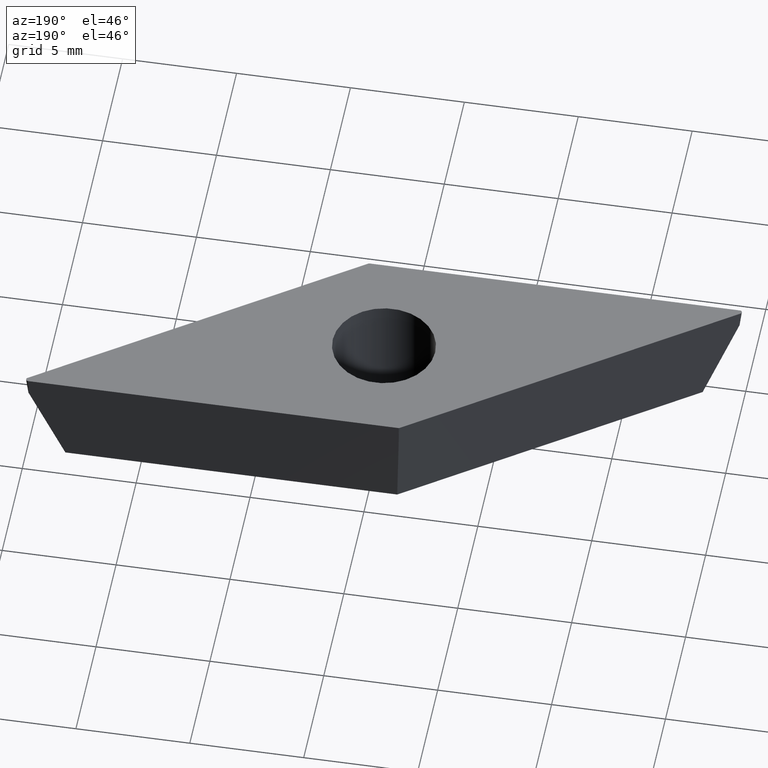
[diagram: clean part render]
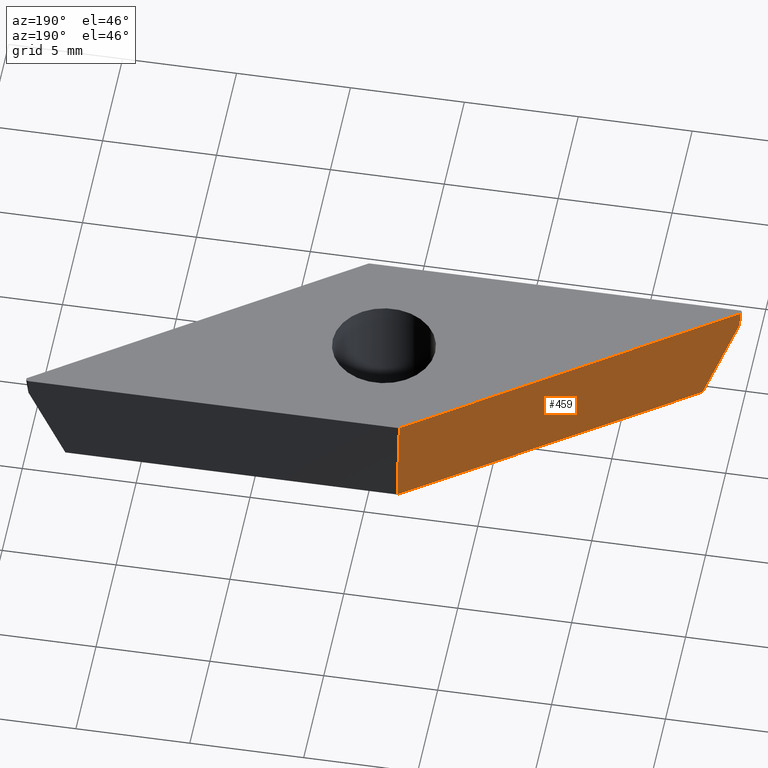
[diagram: same view with one face highlighted and labeled with its STEP entity id]
A machine part, auxiliary view. The second image highlights one B-rep face of the part: STEP entity #459.
In plain terms, the highlighted face is a freeform B-spline surface patch.
Its self-contained STEP definition (entity closure, byte-faithful):
#10 = CARTESIAN_POINT ( 'NONE',  ( -1.342790669617006900, 4.258787908418475400, -4.102405773799581800 ) ) ;
#22 = VERTEX_POINT ( 'NONE', #231 ) ;
#38 = VERTEX_POINT ( 'NONE', #148 ) ;
#42 = VECTOR ( 'NONE', #212, 1000.000000000000100 ) ;
#53 = CARTESIAN_POINT ( 'NONE',  ( -1.527438246783353200, 4.744415204428900500, 0.0000000000000000000 ) ) ;
#64 = CARTESIAN_POINT ( 'NONE',  ( -13.25106736044395100, -4.178045490102173100, -4.760000000000000700 ) ) ;
#66 = VECTOR ( 'NONE', #283, 1000.000000000000000 ) ;
#96 = EDGE_CURVE ( 'NONE', #38, #473, #373, .T. ) ;
#99 = DIRECTION ( 'NONE',  ( 0.06990138369076598400, -0.09982952178648429900, -0.9925461516413219800 ) ) ;
#106 = CARTESIAN_POINT ( 'NONE',  ( -1.527438246783353200, 4.744415204428900500, 0.0000000000000000000 ) ) ;
#108 = B_SPLINE_CURVE_WITH_KNOTS ( 'NONE', 3,
 ( #127, #10, #118, #117, #131, #129, #128 ),
 .UNSPECIFIED., .F., .F.,
 ( 4, 3, 4 ),
 ( 0.0000000000000000000, 0.001989064735450666100, 0.003978129470901333900 ),
 .UNSPECIFIED. ) ;
#117 = CARTESIAN_POINT ( 'NONE',  ( -1.393706643029502600, 4.420272745051085500, -2.787217321398748600 ) ) ;
#118 = CARTESIAN_POINT ( 'NONE',  ( -1.368248656323254100, 4.339530326734782200, -3.444811547599165600 ) ) ;
#127 = CARTESIAN_POINT ( 'NONE',  ( -1.317332682910756800, 4.178045490102173100, -4.759999999999998900 ) ) ;
#128 = CARTESIAN_POINT ( 'NONE',  ( -1.470080603148246300, 4.662499999999996100, -0.8144346427974968900 ) ) ;
#129 = CARTESIAN_POINT ( 'NONE',  ( -1.444622616442004200, 4.581757581683691100, -1.472028868997913700 ) ) ;
#131 = CARTESIAN_POINT ( 'NONE',  ( -1.419164629735751200, 4.501015163367388700, -2.129623095198331500 ) ) ;
#136 = CARTESIAN_POINT ( 'NONE',  ( -14.84491840965372200, -4.580584795571102300, 0.0000000000000000000 ) ) ;
#148 = CARTESIAN_POINT ( 'NONE',  ( -1.317332682910756800, 4.178045490102173100, -4.759999999999998900 ) ) ;
#174 = LINE ( 'NONE', #204, #66 ) ;
#186 = CARTESIAN_POINT ( 'NONE',  ( -5.564323099080708000, 1.061573343207805600, -5.711999999999998900 ) ) ;
#204 = CARTESIAN_POINT ( 'NONE',  ( -14.84491840965372400, -4.580584795571104100, 0.0000000000000000000 ) ) ;
#205 = CARTESIAN_POINT ( 'NONE',  ( -13.25106736044395100, -4.178045490102173100, -4.760000000000000700 ) ) ;
#208 = LINE ( 'NONE', #263, #42 ) ;
#210 = CARTESIAN_POINT ( 'NONE',  ( -5.966598301076501800, 1.636081871099875900, 0.0000000000000000000 ) ) ;
#212 = DIRECTION ( 'NONE',  ( -0.8191520442889946900, -0.5735764363510417200, -0.0000000000000000000 ) ) ;
#219 = CARTESIAN_POINT ( 'NONE',  ( -1.527438246783353200, 4.744415204428900500, 0.0000000000000000000 ) ) ;
#223 = CARTESIAN_POINT ( 'NONE',  ( -10.40575835536146000, -1.472251462240816700, 0.0000000000000000000 ) ) ;
#226 = CARTESIAN_POINT ( 'NONE',  ( -13.76323182896872400, -4.339530326734789300, -3.444811547599106600 ) ) ;
#229 = CARTESIAN_POINT ( 'NONE',  ( -14.84491840965372400, -4.580584795571104100, 0.0000000000000000000 ) ) ;
#231 = CARTESIAN_POINT ( 'NONE',  ( -1.470080603148246300, 4.662499999999996100, -0.8144346427974968900 ) ) ;
#240 = CARTESIAN_POINT ( 'NONE',  ( -1.125163044787564700, 4.169906676536826700, -5.711999999999998900 ) ) ;
#243 = CARTESIAN_POINT ( 'NONE',  ( -13.50714959470632000, -4.258787908418481600, -4.102405773799547200 ) ) ;
#247 = CARTESIAN_POINT ( 'NONE',  ( -14.53147853175609500, -4.581757581683702600, -1.472028868997844500 ) ) ;
#248 = CARTESIAN_POINT ( 'NONE',  ( -14.27539629749361300, -4.501015163367400300, -2.129623095198255100 ) ) ;
#250 = CARTESIAN_POINT ( 'NONE',  ( -14.01931406323116700, -4.420272745051095200, -2.787217321398681100 ) ) ;
#253 = CARTESIAN_POINT ( 'NONE',  ( -10.00348315336567900, -2.046759990132894600, -5.711999999999998900 ) ) ;
#254 = CARTESIAN_POINT ( 'NONE',  ( -14.78756076601861700, -4.662500000000002300, -0.8144346427974499300 ) ) ;
#255 = CARTESIAN_POINT ( 'NONE',  ( -14.44264320765793600, -5.155093323463177900, -5.711999999999998900 ) ) ;
#263 = CARTESIAN_POINT ( 'NONE',  ( -15.10472024625494200, -4.762500000000002000, 0.0000000000000000000 ) ) ;
#266 = CARTESIAN_POINT ( 'NONE',  ( -1.317332682910756800, 4.178045490102173100, -4.759999999999998900 ) ) ;
#270 = LINE ( 'NONE', #106, #394 ) ;
#277 = CARTESIAN_POINT ( 'NONE',  ( -14.78756076601861700, -4.662500000000002300, -0.8144346427974499300 ) ) ;
#279 = EDGE_CURVE ( 'NONE', #336, #484, #174, .T. ) ;
#282 = CARTESIAN_POINT ( 'NONE',  ( -5.295244242091227300, 1.392681830037967700, -4.759999999999999800 ) ) ;
#283 = DIRECTION ( 'NONE',  ( -0.06990138369076598400, 0.09982952178648429900, 0.9925461516413219800 ) ) ;
#301 = CARTESIAN_POINT ( 'NONE',  ( -13.25106736044395100, -4.178045490102173100, -4.760000000000000700 ) ) ;
#308 = ORIENTED_EDGE ( 'NONE', *, *, #385, .F. ) ;
#323 = ORIENTED_EDGE ( 'NONE', *, *, #441, .T. ) ;
#325 = ORIENTED_EDGE ( 'NONE', *, *, #431, .F. ) ;
#332 = ORIENTED_EDGE ( 'NONE', *, *, #96, .T. ) ;
#334 = ORIENTED_EDGE ( 'NONE', *, *, #402, .T. ) ;
#335 = ORIENTED_EDGE ( 'NONE', *, *, #279, .T. ) ;
#336 = VERTEX_POINT ( 'NONE', #277 ) ;
#345 = FACE_OUTER_BOUND ( 'NONE', #463, .T. ) ;
#373 = B_SPLINE_CURVE_WITH_KNOTS ( 'NONE', 3,
 ( #266, #282, #443, #301 ),
 .UNSPECIFIED., .F., .F.,
 ( 4, 4 ),
 ( 1.563658610346375400E-018, 0.01456840004335447700 ),
 .UNSPECIFIED. ) ;
#377 = B_SPLINE_CURVE_WITH_KNOTS ( 'NONE', 3,
 ( #205, #243, #226, #250, #248, #247, #254 ),
 .UNSPECIFIED., .F., .F.,
 ( 4, 3, 4 ),
 ( 0.0000000000000000000, 0.002130903220789934900, 0.004261806441579869800 ),
 .UNSPECIFIED. ) ;
#385 = EDGE_CURVE ( 'NONE', #487, #484, #208, .T. ) ;
#394 = VECTOR ( 'NONE', #99, 1000.000000000000000 ) ;
#402 = EDGE_CURVE ( 'NONE', #473, #336, #377, .T. ) ;
#429 = B_SPLINE_SURFACE_WITH_KNOTS ( 'NONE', 1, 3, ( 
 ( #219, #210, #223, #229 ),
 ( #240, #186, #253, #255 ) ),
 .UNSPECIFIED., .F., .F., .F.,
 ( 2, 2 ),
 ( 4, 4 ),
 ( 0.0000000000000000000, 1.000000000000000000 ),
 ( -0.01657480084940318700, -0.0003171594802363236500 ),
 .UNSPECIFIED. ) ;
#431 = EDGE_CURVE ( 'NONE', #38, #22, #108, .T. ) ;
#441 = EDGE_CURVE ( 'NONE', #487, #22, #270, .T. ) ;
#443 = CARTESIAN_POINT ( 'NONE',  ( -9.273155801265250600, -1.392681830035446900, -4.759999999999999800 ) ) ;
#459 = ADVANCED_FACE ( 'NONE', ( #345 ), #429, .T. ) ;
#463 = EDGE_LOOP ( 'NONE', ( #308, #323, #325, #332, #334, #335 ) ) ;
#473 = VERTEX_POINT ( 'NONE', #64 ) ;
#484 = VERTEX_POINT ( 'NONE', #136 ) ;
#487 = VERTEX_POINT ( 'NONE', #53 ) ;